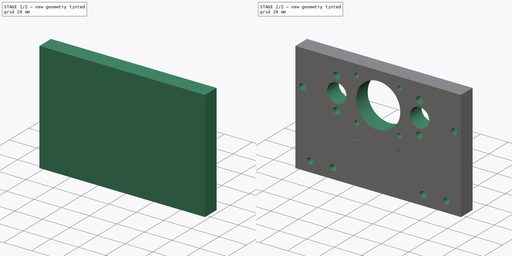
[diagram: build sequence overview — one tinted view per stage of 2, left to right]
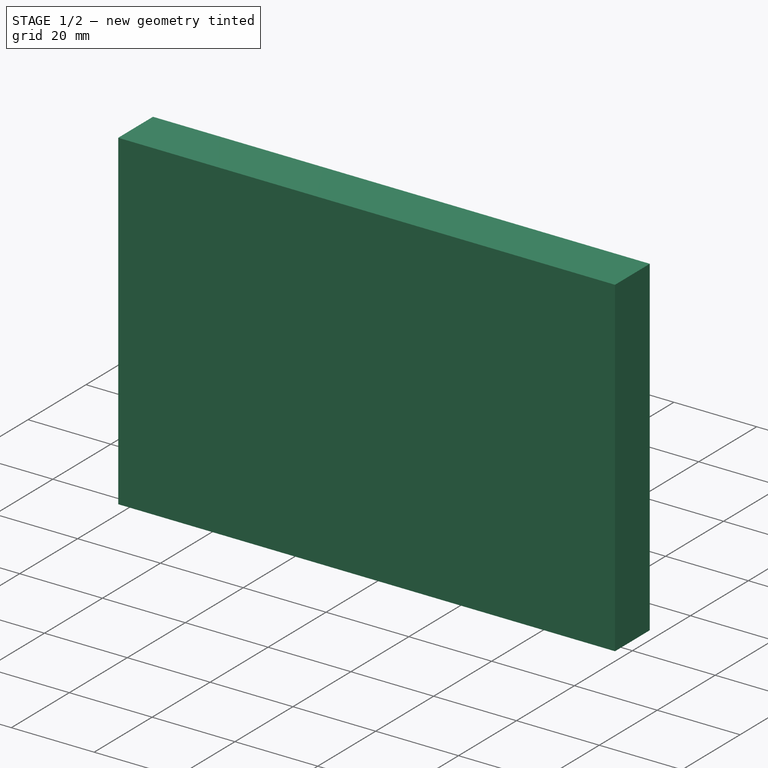
[diagram: stage 1 of 2 — iso view after this stage's code; geometry added in this stage tinted green]
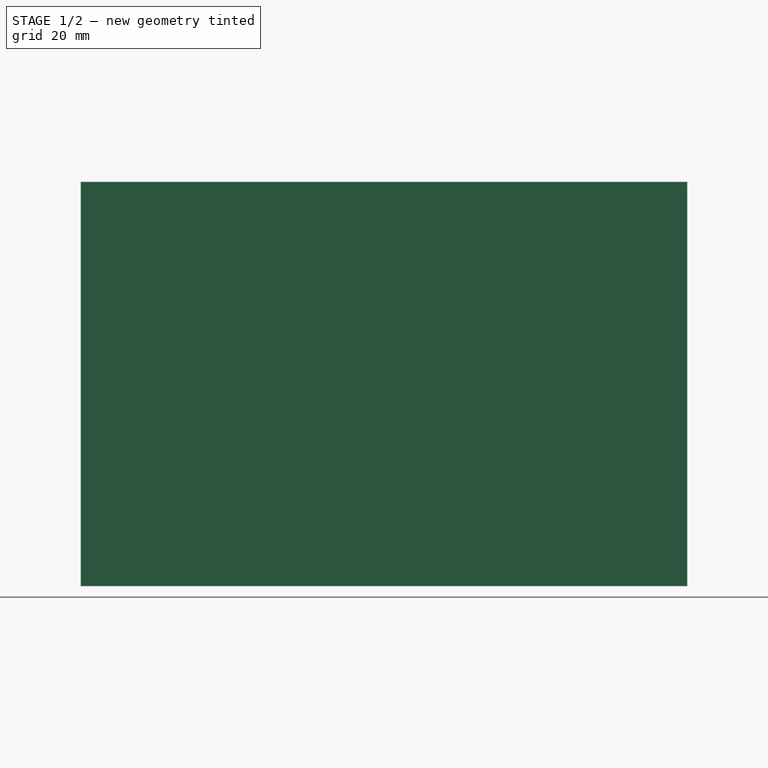
[diagram: stage 1 of 2 — front view after this stage's code; geometry added in this stage tinted green]
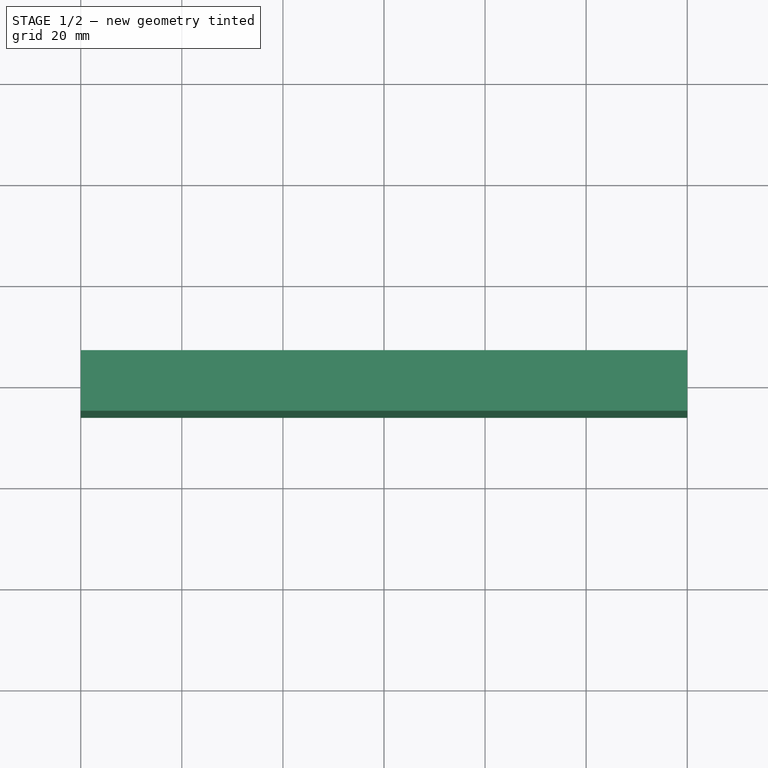
[diagram: stage 1 of 2 — top view after this stage's code; geometry added in this stage tinted green]
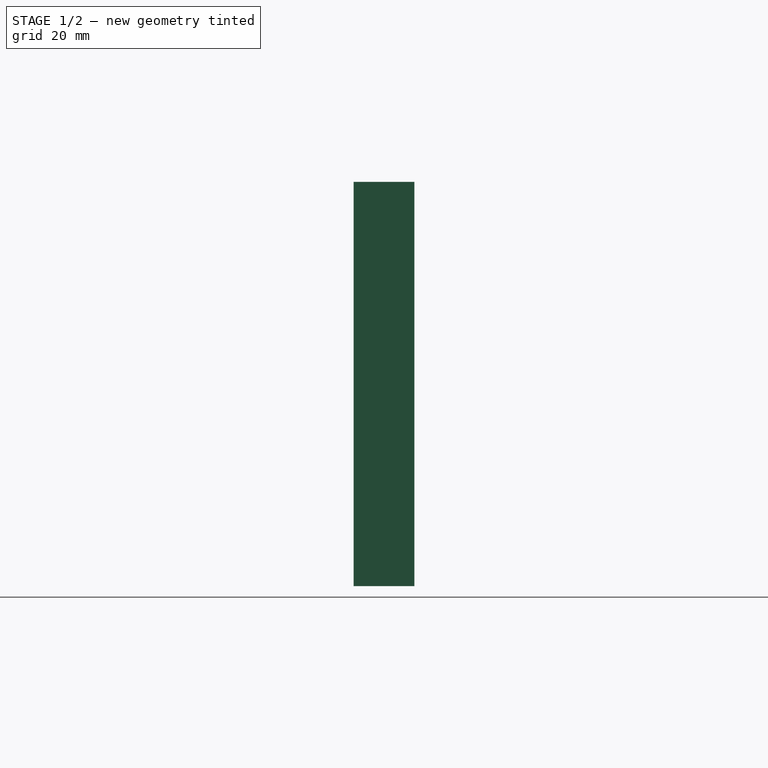
[diagram: stage 1 of 2 — right view after this stage's code; geometry added in this stage tinted green]
FCSTD DOCUMENT  (FreeCAD 0.15R4671 (Git))
Label: Tisch X-Achse - obere Wand
License: All rights reserved
LicenseURL: http://en.wikipedia.org/wiki/All_rights_reserved
objects: Drawing::FeatureView×29, Sketcher::SketchObject×2, PartDesign::Pad×1, PartDesign::Pocket×1, Drawing::FeatureViewPart×1, Drawing::FeaturePage×1
note: 6 computed .brp shape members not serialized (recipe doc carries the construction recipe); baked Part::Feature solids carry a one-line shape summary decoded from their .brp

FEATURE [Sketcher::SketchObject] Sketch
  sketch-geometry (4):
    g0: LineSegment StartX=-60 StartY=6 StartZ=0 EndX=60 EndY=6 EndZ=0
    g1: LineSegment StartX=60 StartY=6 StartZ=0 EndX=60 EndY=-6 EndZ=0
    g2: LineSegment StartX=60 StartY=-6 StartZ=0 EndX=-60 EndY=-6 EndZ=0
    g3: LineSegment StartX=-60 StartY=-6 StartZ=0 EndX=-60 EndY=6 EndZ=0
  constraints (12):
    c: Coincident(g0,g1)
    c: Coincident(g1,g2)
    c: Coincident(g2,g3)
    c: Coincident(g3,g0)
    c: Horizontal(g0)
    c: Horizontal(g2)
    c: Vertical(g1)
    c: Vertical(g3)
    c: Symmetric(g2,g1,g-2)
    c: Symmetric(g0,g1,g-1)
    c: DistanceY(g1) = -12
    c: DistanceX(g0) = 120
FEATURE [PartDesign::Pad] Pad
  Length = 80
  Length2 = 100
  Sketch = -> Sketch
  Type = 0
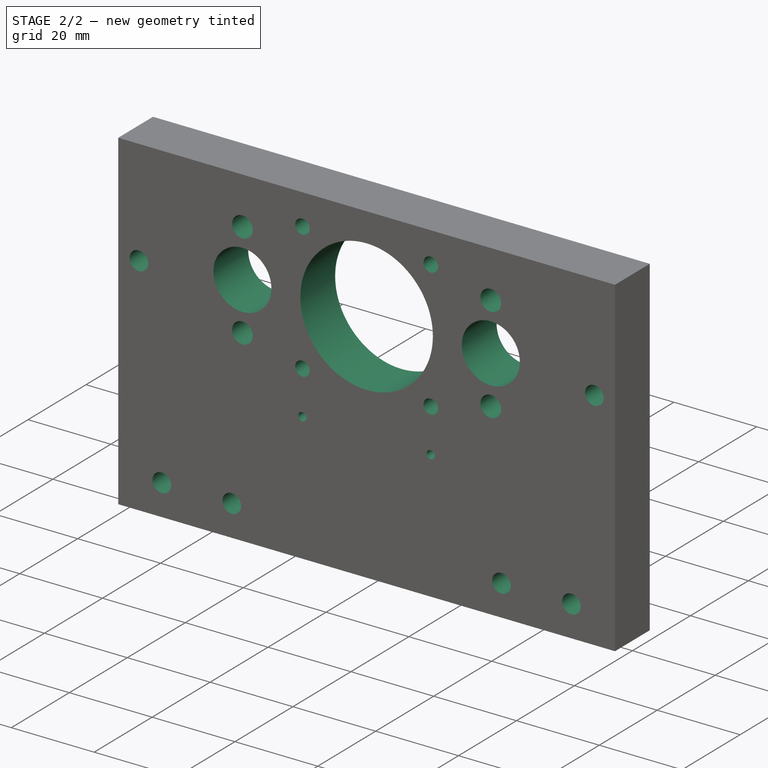
[diagram: stage 2 of 2 — iso view after this stage's code; geometry added in this stage tinted green]
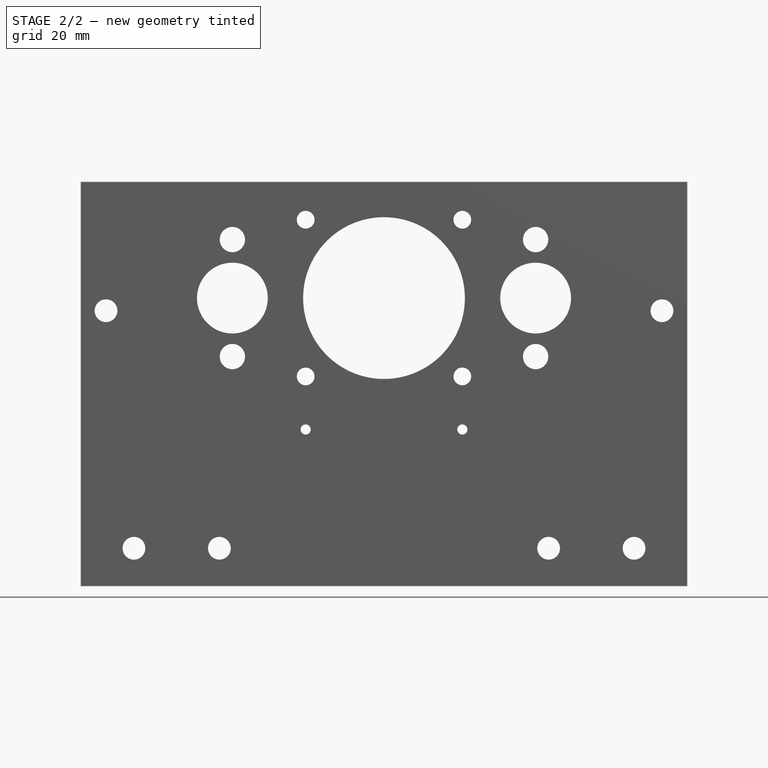
[diagram: stage 2 of 2 — front view after this stage's code; geometry added in this stage tinted green]
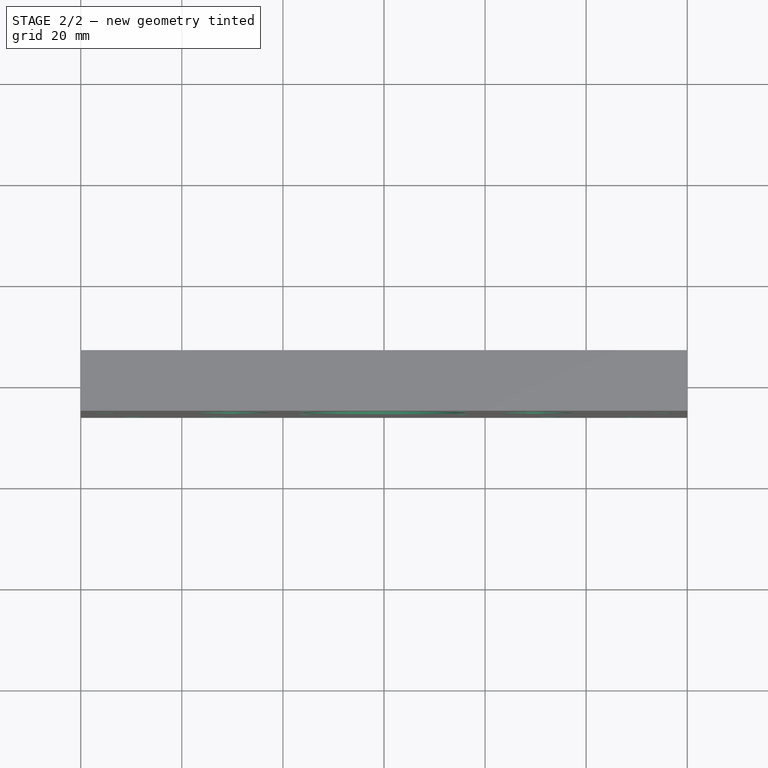
[diagram: stage 2 of 2 — top view after this stage's code; geometry added in this stage tinted green]
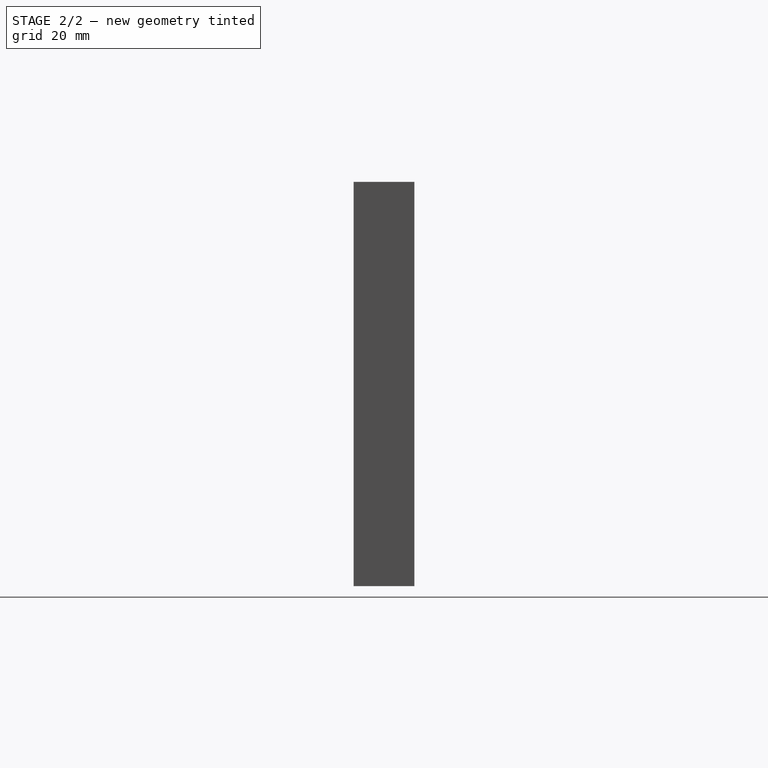
[diagram: stage 2 of 2 — right view after this stage's code; geometry added in this stage tinted green]
FEATURE [Sketcher::SketchObject] Sketch001
  ExternalGeometry = -> [Pad]
  Placement = pos=(0,-6,0) rot=(1,0,0;1.5708rad)
  Support = -> Pad [Face3]
  sketch-geometry (35):
    g0: LineSegment [constr] StartX=-60 StartY=7.5 StartZ=0 EndX=-49.475 EndY=7.5 EndZ=0
    g1: LineSegment [constr] StartX=-49.475 StartY=7.5 StartZ=0 EndX=-32.575 EndY=7.5 EndZ=0
    g2: LineSegment [constr] StartX=-32.575 StartY=7.5 StartZ=0 EndX=32.575 EndY=7.5 EndZ=0
    g3: LineSegment [constr] StartX=32.575 StartY=7.5 StartZ=0 EndX=49.475 EndY=7.5 EndZ=0
    g4: LineSegment [constr] StartX=49.475 StartY=7.5 StartZ=0 EndX=60 EndY=7.5 EndZ=0
    g5: Circle CenterX=-49.475 CenterY=7.5 CenterZ=0 NormalX=0 NormalY=0 NormalZ=1 Radius=2.25
    g6: Circle CenterX=-32.575 CenterY=7.5 CenterZ=0 NormalX=0 NormalY=0 NormalZ=1 Radius=2.25
    g7: Circle CenterX=32.575 CenterY=7.5 CenterZ=0 NormalX=0 NormalY=0 NormalZ=1 Radius=2.25
    g8: Circle CenterX=49.475 CenterY=7.5 CenterZ=0 NormalX=0 NormalY=0 NormalZ=1 Radius=2.25
    g9: Circle CenterX=-30 CenterY=57 CenterZ=0 NormalX=0 NormalY=0 NormalZ=1 Radius=7
    g10: Circle CenterX=30 CenterY=57 CenterZ=0 NormalX=0 NormalY=0 NormalZ=1 Radius=7
    g11: LineSegment [constr] StartX=-60 StartY=57 StartZ=0 EndX=-30 EndY=57 EndZ=0
    g12: LineSegment [constr] StartX=-30 StartY=57 StartZ=0 EndX=30 EndY=57 EndZ=0
    g13: LineSegment [constr] StartX=30 StartY=57 StartZ=0 EndX=60 EndY=57 EndZ=0
    g14: Circle CenterX=0 CenterY=57 CenterZ=0 NormalX=0 NormalY=0 NormalZ=1 Radius=16
    g15: LineSegment [constr] StartX=-15.5 StartY=72.5 StartZ=0 EndX=15.5 EndY=72.5 EndZ=0
    g16: LineSegment [constr] StartX=15.5 StartY=72.5 StartZ=0 EndX=15.5 EndY=41.5 EndZ=0
    g17: LineSegment [constr] StartX=15.5 StartY=41.5 StartZ=0 EndX=-15.5 EndY=41.5 EndZ=0
    g18: LineSegment [constr] StartX=-15.5 StartY=41.5 StartZ=0 EndX=-15.5 EndY=72.5 EndZ=0
    g19: Circle CenterX=-15.5 CenterY=72.5 CenterZ=0 NormalX=0 NormalY=0 NormalZ=1 Radius=1.75
    g20: Circle CenterX=-15.5 CenterY=41.5 CenterZ=0 NormalX=0 NormalY=0 NormalZ=1 Radius=1.75
    g21: Circle CenterX=15.5 CenterY=41.5 CenterZ=0 NormalX=0 NormalY=0 NormalZ=1 Radius=1.75
    g22: Circle CenterX=15.5 CenterY=72.5 CenterZ=0 NormalX=0 NormalY=0 NormalZ=1 Radius=1.75
    g23: Circle CenterX=-30 CenterY=68.575 CenterZ=0 NormalX=0 NormalY=0 NormalZ=1 Radius=2.5
    g24: Circle CenterX=-30 CenterY=45.425 CenterZ=0 NormalX=0 NormalY=0 NormalZ=1 Radius=2.5
    g25: Circle CenterX=30 CenterY=68.575 CenterZ=0 NormalX=0 NormalY=0 NormalZ=1 Radius=2.5
    g26: Circle CenterX=30 CenterY=45.425 CenterZ=0 NormalX=0 NormalY=0 NormalZ=1 Radius=2.5
    g27: LineSegment [constr] StartX=-30 StartY=45.425 StartZ=0 EndX=-30 EndY=68.575 EndZ=0
    g28: LineSegment [constr] StartX=30 StartY=68.575 StartZ=0 EndX=30 EndY=45.425 EndZ=0
    g29: Circle CenterX=-55 CenterY=54.5 CenterZ=0 NormalX=0 NormalY=0 NormalZ=1 Radius=2.25
    g30: Circle CenterX=55 CenterY=54.5 CenterZ=0 NormalX=0 NormalY=0 NormalZ=1 Radius=2.25
    g31: LineSegment [constr] StartX=-55 StartY=54.5 StartZ=0 EndX=55 EndY=54.5 EndZ=0
    g32: LineSegment [constr] StartX=-15.5 StartY=31 StartZ=0 EndX=15.5 EndY=31 EndZ=0
    g33: Circle CenterX=-15.5 CenterY=31 CenterZ=0 NormalX=0 NormalY=0 NormalZ=1 Radius=1
    g34: Circle CenterX=15.5 CenterY=31 CenterZ=0 NormalX=0 NormalY=0 NormalZ=1 Radius=1
  constraints (90):
    c: PointOnObject(g0,g-3)
    c: Horizontal(g0)
    c: Coincident(g0,g1)
    c: Horizontal(g1)
    c: Coincident(g1,g2)
    c: Horizontal(g2)
    c: Coincident(g2,g3)
    c: Horizontal(g3)
    c: Coincident(g3,g4)
    c: PointOnObject(g4,g-4)
    c: Horizontal(g4)
    c: Symmetric(g1,g2,g-2)
    c: Equal(g1,g3)
    c: Equal(g0,g4)
    c: DistanceX(g0) = 10.525
    c: DistanceX(g0,g1) = 27.425
    c: DistanceY(g-3,g0) = 7.5
    c: Coincident(g5,g0)
    c: Coincident(g6,g1)
    c: Coincident(g7,g2)
    c: Coincident(g8,g3)
    c: Radius(g5) = 2.25
    c: Equal(g5,g6)
    c: Equal(g5,g7)
    c: Equal(g5,g8)
    c: PointOnObject(g11,g-3)
    c: Horizontal(g11)
    c: Coincident(g11,g12)
    c: Horizontal(g12)
    c: Coincident(g12,g13)
    c: PointOnObject(g13,g-4)
    c: Horizontal(g13)
    c: Equal(g13,g11)
    c: Coincident(g9,g11)
    c: Coincident(g10,g12)
    c: Radius(g9) = 7
    c: Equal(g9,g10)
    c: DistanceX(g12) = 60
    c: DistanceY(g-3,g11) = 57
    c: PointOnObject(g14,g-2)
    c: Radius(g14) = 16
    c: Coincident(g15,g16)
    c: Coincident(g16,g17)
    c: Coincident(g17,g18)
    c: Coincident(g18,g15)
    c: Horizontal(g15)
    c: Horizontal(g17)
    c: Vertical(g16)
    c: Vertical(g18)
    c: Equal(g17,g16)
    c: Symmetric(g15,g15,g-2)
    c: Coincident(g19,g15)
    c: Coincident(g20,g17)
    c: Coincident(g21,g16)
    c: Coincident(g22,g15)
    c: Radius(g20) = 1.75
    c: Equal(g20,g19)
    c: Equal(g20,g22)
    c: Equal(g20,g21)
    c: DistanceX(g15) = 31
    c: PointOnObject(g14,g12)
    c: Symmetric(g17,g15,g12)
    c: Coincident(g27,g24)
    c: Coincident(g27,g23)
    c: Coincident(g28,g25)
    c: Coincident(g28,g26)
    c: Equal(g27,g28)
    c: Symmetric(g24,g23,g11)
    c: Symmetric(g25,g26,g13)
    c: PointOnObject(g9,g27)
    c: PointOnObject(g10,g28)
    c: DistanceY(g28) = -23.15
    c: Radius(g26) = 2.5
    c: Equal(g26,g24)
    c: Equal(g26,g23)
    c: Equal(g26,g25)
    c: Radius(g29) = 2.25
    c: Equal(g29,g30)
    c: Coincident(g31,g29)
    c: Coincident(g31,g30)
    c: Symmetric(g29,g30,g-2)
    c: DistanceX(g29,g-3) = -5
    c: DistanceY(g29,g-3) = 25.5
    c: Symmetric(g32,g32,g-2)
    c: PointOnObject(g32,g18)
    c: Coincident(g33,g32)
    c: Coincident(g34,g32)
    c: DistanceY(g16,g32) = -10.5
    c: Radius(g33) = 1
    c: Equal(g33,g34)
FEATURE [PartDesign::Pocket] Pocket
  Length = 5
  Sketch = -> Sketch001
  Type = 1
FEATURE [Drawing::FeatureViewPart] Ortho  label="Ortho_0_0"
  Direction = (0,1,0)
  HiddenWidth = 0.15
  LineWidth = 0.35
  Rotation = 90
  ShowHiddenLines = false
  ShowSmoothLines = false
  Source = -> Pocket
  Tolerance = 0.05
  ViewResult = <g id="Ortho_0_0"\n   transform="rotate(90,148.5,65) translate(148.5,65) scale(1,1)"\n  >\n<g   stroke="rgb(0, 0, 0)"\n   stroke-width="0.35"\n   stroke-linecap="butt"\n   stroke-linejoin="miter"\n   fill="none"\n   transform="scale(1,-1)"\n  >\n<path id= "1" d=" M 0 -60 L 80 -60 " />\n<path id= "2" d=" M 0 -60 L 0 60 " />\n<path id= "3" d=" M 80 -60 L 80 60 " />\n<path id= "4" d=" M 0 60 L 80 60 " />\n<circle cx ="57" cy ="30" r ="7" /><circle cx ="45.425" cy ="30" r ="2.5" /><circle cx ="7.5" cy ="32.575" r ="2.25" /><circle cx ="41.5" cy ="15.5" r ="1.75" /><circle cx ="31" cy ="15.5" r ="1" /><circle cx ="7.5" cy ="-32.575" r ="2.25" /><circle cx ="31" cy ="-15.5" r ="1" /><circle cx ="41.5" cy ="-15.5" r ="1.75" /><circle cx ="45.425" cy ="-30" r ="2.5" /><circle cx ="57" cy ="-30" r ="7" /><circle cx ="68.575" cy ="-30" r ="2.5" /><circle cx ="68.575" cy ="30" r ="2.5" /><circle cx ="57" cy ="0" r ="16" /><circle cx ="72.5" cy ="15.5" r ="1.75" /><circle cx ="72.5" cy ="-15.5" r ="1.75" /><circle cx ="7.5" cy ="49.475" r ="2.25" /><circle cx ="7.5" cy ="-49.475" r ="2.25" /><circle cx ="54.5" cy ="55" r ="2.25" /><circle cx ="54.5" cy ="-55" r ="2.25" /></g>\n</g>
  Visible = true
  X = 148.5
  Y = 65
FEATURE [Drawing::FeatureView] dim001
  Rotation = 0
  ViewResult = <g>  <circle cx ="99.025000" cy ="72.500000" r="0.250000" stroke="none" fill="rgb(0,0,255)" /> \n<line x1="88.647109" y1="55.640207" x2="100.204436" y2="74.416098" style="stroke:rgb(0,0,255);stroke-width:0.50" />\n<polygon points="97.845564,70.583902 97.124581,67.504912 95.748788,67.177507 95.421383,68.553300" style="fill:rgb(0,0,255);stroke:rgb(0,0,255);stroke-width:0" />\n<polygon points="100.204436,74.416098 100.925419,77.495088 102.301212,77.822493 102.628617,76.446700" style="fill:rgb(0,0,255);stroke:rgb(0,0,255);stroke-width:0" />\n<line x1="88.647109" y1="55.640207" x2="72.929536" y2="55.640207" style="stroke:rgb(0,0,255);stroke-width:0.50" />\n<text x="80.788323" y="53.640207" font-family="inherit" font-size="3.6" fill="rgb(0,0,255)" text-anchor="middle" transform="rotate(0.000000 80.788323,53.640207)" >Ø4.5</text> </g>
  Visible = true
  X = 0
  Y = 0
FEATURE [Drawing::FeatureView] dim007
  Rotation = 0
  ViewResult = <g>  <circle cx ="118.500000" cy ="122.000000" r="0.250000" stroke="none" fill="rgb(0,0,255)" /> \n<line x1="94.721908" y1="113.446006" x2="125.086752" y2="124.369536" style="stroke:rgb(0,0,255);stroke-width:0.50" />\n<polygon points="111.913248,119.630464 114.397637,121.586944 115.677106,120.984485 115.074647,119.705015" style="fill:rgb(0,0,255);stroke:rgb(0,0,255);stroke-width:0" />\n<polygon points="125.086752,124.369536 122.602363,122.413056 121.322894,123.015515 121.925353,124.294985" style="fill:rgb(0,0,255);stroke:rgb(0,0,255);stroke-width:0" />\n<line x1="94.721908" y1="113.446006" x2="70.490722" y2="113.446006" style="stroke:rgb(0,0,255);stroke-width:0.50" />\n<text x="82.606315" y="111.446006" font-family="inherit" font-size="3.6" fill="rgb(0,0,255)" text-anchor="middle" transform="rotate(0.000000 82.606315,111.446006)" >Ø14</text> </g>
  Visible = true
  X = 0
  Y = 0
FEATURE [Drawing::FeatureView] dim002
  Rotation = 0
  ViewResult = <g>  <circle cx ="148.500000" cy ="122.000000" r="0.250000" stroke="none" fill="rgb(0,0,255)" /> \n<line x1="174.684821" y1="135.694640" x2="134.321976" y2="114.584905" style="stroke:rgb(0,0,255);stroke-width:0.50" />\n<polygon points="162.678024,129.415095 160.483088,127.138638 159.133518,127.561321 159.556201,128.910891" style="fill:rgb(0,0,255);stroke:rgb(0,0,255);stroke-width:0" />\n<polygon points="134.321976,114.584905 136.516912,116.861362 137.866482,116.438679 137.443799,115.089109" style="fill:rgb(0,0,255);stroke:rgb(0,0,255);stroke-width:0" />\n<line x1="174.684821" y1="135.694640" x2="201.118842" y2="135.694640" style="stroke:rgb(0,0,255);stroke-width:0.50" />\n<text x="187.901831" y="133.694640" font-family="inherit" font-size="3.6" fill="rgb(0,0,255)" text-anchor="middle" transform="rotate(0.000000 187.901831,133.694640)" >Ø32</text> </g>
  Visible = true
  X = 0
  Y = 0
FEATURE [Drawing::FeatureView] centerLines001
  Rotation = 0
  ViewResult = <g transform="scale(1.000000,1.000000)" stroke="rgb(0,0,255)"  stroke-width="0.320000" > <path d="M 99.025000,72.500000 L 99.025000,69.500000 M 99.025000,67.500000 L 99.025000,64.543067 "/>\n<path d="M 99.025000,72.500000 L 102.025000,72.500000 M 104.025000,72.500000 L 104.194099,72.500000 "/>\n<path d="M 99.025000,72.500000 L 99.025000,75.500000 M 99.025000,77.500000 L 99.025000,78.420928 "/>\n<path d="M 99.025000,72.500000 L 96.025000,72.500000 M 94.025000,72.500000 L 90.536521,72.500000 "/> </g> 
  Visible = true
  X = 0
  Y = 0
FEATURE [Drawing::FeatureView] centerLines002
  Rotation = 0
  ViewResult = <g transform="scale(1.000000,1.000000)" stroke="rgb(0,0,255)"  stroke-width="0.320000" > <path d="M 115.925000,72.500000 L 115.925000,69.500000 M 115.925000,67.500000 L 115.925000,67.186470 "/>\n<path d="M 115.925000,72.500000 L 118.925000,72.500000 M 120.925000,72.500000 L 123.138480,72.500000 "/>\n<path d="M 115.925000,72.500000 L 115.925000,75.500000 M 115.925000,77.500000 L 115.925000,78.861495 "/>\n<path d="M 115.925000,72.500000 L 112.925000,72.500000 "/> </g> 
  Visible = true
  X = 0
  Y = 0
FEATURE [Drawing::FeatureView] centerLines003
  Rotation = 0
  ViewResult = <g transform="scale(1.000000,1.000000)" stroke="rgb(0,0,255)"  stroke-width="0.320000" > <path d="M 181.075000,72.500000 L 181.075000,69.500000 M 181.075000,67.500000 L 181.075000,66.745903 "/>\n<path d="M 181.075000,72.500000 L 184.075000,72.500000 M 186.075000,72.500000 L 186.800414,72.500000 "/>\n<path d="M 181.075000,72.500000 L 181.075000,75.500000 M 181.075000,77.500000 L 181.075000,81.064330 "/>\n<path d="M 181.075000,72.500000 L 178.075000,72.500000 M 176.075000,72.500000 L 173.363120,72.500000 "/> </g> 
  Visible = true
  X = 0
  Y = 0
FEATURE [Drawing::FeatureView] centerLines004
  Rotation = 0
  ViewResult = <g transform="scale(1.000000,1.000000)" stroke="rgb(0,0,255)"  stroke-width="0.320000" > <path d="M 197.975000,72.500000 L 197.975000,69.500000 M 197.975000,67.500000 L 197.975000,66.305336 "/>\n<path d="M 197.975000,72.500000 L 200.975000,72.500000 M 202.975000,72.500000 L 205.744795,72.500000 "/>\n<path d="M 197.975000,72.500000 L 197.975000,75.500000 M 197.975000,77.500000 L 197.975000,82.165748 "/>\n<path d="M 197.975000,72.500000 L 194.975000,72.500000 M 192.975000,72.500000 L 191.646651,72.500000 "/> </g> 
  Visible = true
  X = 0
  Y = 0
FEATURE [Drawing::FeatureView] centerLines005
  Rotation = 0
  ViewResult = <g transform="scale(1.000000,1.000000)" stroke="rgb(0,0,255)"  stroke-width="0.320000" > <path d="M 164.000000,106.500000 L 164.000000,103.500000 M 164.000000,101.500000 L 164.000000,99.127578 "/>\n<path d="M 164.000000,106.500000 L 167.000000,106.500000 M 169.000000,106.500000 L 175.000000,106.500000 "/>\n<path d="M 164.000000,106.500000 L 164.000000,109.500000 "/>\n<path d="M 164.000000,106.500000 L 161.000000,106.500000 M 159.000000,106.500000 L 156.181006,106.500000 "/> </g> 
  Visible = true
  X = 0
  Y = 0
FEATURE [Drawing::FeatureView] centerLines006
  Rotation = 0
  ViewResult = <g transform="scale(1.000000,1.000000)" stroke="rgb(0,0,255)"  stroke-width="0.320000" > <path d="M 133.000000,106.500000 L 133.000000,103.500000 M 133.000000,101.500000 L 133.000000,98.687011 "/>\n<path d="M 133.000000,106.500000 L 136.000000,106.500000 M 138.000000,106.500000 L 140.100310,106.500000 "/>\n<path d="M 133.000000,106.500000 L 133.000000,109.500000 "/>\n<path d="M 133.000000,106.500000 L 130.000000,106.500000 M 128.000000,106.500000 L 123.799331,106.500000 "/> </g> 
  Visible = true
  X = 0
  Y = 0
FEATURE [Drawing::FeatureView] centerLines007
  Rotation = 0
  ViewResult = <g transform="scale(1.000000,1.000000)" stroke="rgb(0,0,255)"  stroke-width="0.320000" > <path d="M 118.500000,122.000000 L 118.500000,119.000000 M 118.500000,117.000000 L 118.500000,111.000000 "/>\n<path d="M 118.500000,122.000000 L 121.500000,122.000000 M 123.500000,122.000000 L 129.086135,122.000000 "/>\n<path d="M 118.500000,122.000000 L 118.500000,125.000000 M 118.500000,127.000000 L 118.500000,133.000000 "/>\n<path d="M 118.500000,122.000000 L 115.500000,122.000000 M 113.500000,122.000000 L 107.500000,122.000000 "/> </g> 
  Visible = true
  X = 0
  Y = 0
FEATURE [Drawing::FeatureView] centerLines008
  Rotation = 0
  ViewResult = <g transform="scale(1.000000,1.000000)" stroke="rgb(0,0,255)"  stroke-width="0.320000" > <path d="M 148.500000,122.000000 L 148.500000,119.000000 M 148.500000,117.000000 L 148.500000,111.000000 M 148.500000,109.000000 L 148.500000,106.000000 M 148.500000,104.000000 L 148.500000,102.211547 "/>\n<path d="M 148.500000,122.000000 L 151.500000,122.000000 M 153.500000,122.000000 L 159.500000,122.000000 M 161.500000,122.000000 L 164.500000,122.000000 M 166.500000,122.000000 L 168.737166,122.000000 "/>\n<path d="M 148.500000,122.000000 L 148.500000,125.000000 M 148.500000,127.000000 L 148.500000,133.000000 M 148.500000,135.000000 L 148.500000,138.000000 "/>\n<path d="M 148.500000,122.000000 L 145.500000,122.000000 M 143.500000,122.000000 L 137.500000,122.000000 M 135.500000,122.000000 L 132.500000,122.000000 "/> </g> 
  Visible = true
  X = 0
  Y = 0
FEATURE [Drawing::FeatureView] centerLines009
  Rotation = 0
  ViewResult = <g transform="scale(1.000000,1.000000)" stroke="rgb(0,0,255)"  stroke-width="0.320000" > <path d="M 178.500000,122.000000 L 178.500000,119.000000 M 178.500000,117.000000 L 178.500000,111.000000 M 178.500000,109.000000 L 178.500000,108.820052 "/>\n<path d="M 178.500000,122.000000 L 181.500000,122.000000 M 183.500000,122.000000 L 189.500000,122.000000 M 191.500000,122.000000 L 192.087218,122.000000 "/>\n<path d="M 178.500000,122.000000 L 178.500000,125.000000 M 178.500000,127.000000 L 178.500000,133.000000 "/>\n<path d="M 178.500000,122.000000 L 175.500000,122.000000 M 173.500000,122.000000 L 167.500000,122.000000 "/> </g> 
  Visible = true
  X = 0
  Y = 0
FEATURE [Drawing::FeatureView] centerLines010
  Rotation = 0
  ViewResult = <g transform="scale(1.000000,1.000000)" stroke="rgb(0,0,255)"  stroke-width="0.320000" > <path d="M 164.000000,137.500000 L 164.000000,134.500000 "/>\n<path d="M 164.000000,137.500000 L 167.000000,137.500000 "/>\n<path d="M 164.000000,137.500000 L 164.000000,140.500000 "/>\n<path d="M 164.000000,137.500000 L 161.000000,137.500000 "/> </g> 
  Visible = true
  X = 0
  Y = 0
FEATURE [Drawing::FeatureView] centerLines011
  Rotation = 0
  ViewResult = <g transform="scale(1.000000,1.000000)" stroke="rgb(0,0,255)"  stroke-width="0.320000" > <path d="M 133.000000,137.500000 L 133.000000,134.500000 "/>\n<path d="M 133.000000,137.500000 L 136.000000,137.500000 "/>\n<path d="M 133.000000,137.500000 L 133.000000,140.500000 M 133.000000,142.500000 L 133.000000,143.184279 "/>\n<path d="M 133.000000,137.500000 L 130.000000,137.500000 M 128.000000,137.500000 L 127.544150,137.500000 "/> </g> 
  Visible = true
  X = 0
  Y = 0
FEATURE [Drawing::FeatureView] centerLines012
  Rotation = 0
  ViewResult = <g transform="scale(1.000000,1.000000)" stroke="rgb(0,0,255)"  stroke-width="0.320000" > <path d="M 118.500000,110.425000 L 118.500000,107.425000 M 118.500000,105.425000 L 118.500000,104.511199 "/>\n<path d="M 118.500000,110.425000 L 121.500000,110.425000 M 123.500000,110.425000 L 125.062140,110.425000 "/>\n<path d="M 118.500000,110.425000 L 118.500000,113.425000 "/>\n<path d="M 118.500000,110.425000 L 115.500000,110.425000 M 113.500000,110.425000 L 112.942354,110.425000 "/> </g> 
  Visible = true
  X = 0
  Y = 0
FEATURE [Drawing::FeatureView] centerLines013
  Rotation = 0
  ViewResult = <g transform="scale(1.000000,1.000000)" stroke="rgb(0,0,255)"  stroke-width="0.320000" > <path d="M 118.500000,133.575000 L 118.500000,130.575000 "/>\n<path d="M 118.500000,133.575000 L 121.500000,133.575000 M 123.500000,133.575000 L 125.237790,133.575000 "/>\n<path d="M 118.500000,133.575000 L 118.500000,136.575000 M 118.500000,138.575000 L 118.500000,139.289715 "/>\n<path d="M 118.500000,133.575000 L 115.500000,133.575000 M 113.500000,133.575000 L 113.118003,133.575000 "/> </g> 
  Visible = true
  X = 0
  Y = 0
FEATURE [Drawing::FeatureView] centerLines014
  Rotation = 0
  ViewResult = <g transform="scale(1.000000,1.000000)" stroke="rgb(0,0,255)"  stroke-width="0.320000" > <path d="M 178.500000,110.425000 L 178.500000,107.425000 M 178.500000,105.425000 L 178.500000,103.984252 "/>\n<path d="M 178.500000,110.425000 L 181.500000,110.425000 M 183.500000,110.425000 L 185.309773,110.425000 "/>\n<path d="M 178.500000,110.425000 L 178.500000,113.425000 M 178.500000,115.425000 L 178.500000,117.333581 "/>\n<path d="M 178.500000,110.425000 L 175.500000,110.425000 M 173.500000,110.425000 L 173.014338,110.425000 "/> </g> 
  Visible = true
  X = 0
  Y = 0
FEATURE [Drawing::FeatureView] centerLines015
  Rotation = 0
  ViewResult = <g transform="scale(1.000000,1.000000)" stroke="rgb(0,0,255)"  stroke-width="0.320000" > <path d="M 178.500000,133.575000 L 178.500000,130.575000 M 178.500000,128.575000 L 178.500000,125.764737 "/>\n<path d="M 178.500000,133.575000 L 181.500000,133.575000 M 183.500000,133.575000 L 184.782826,133.575000 "/>\n<path d="M 178.500000,133.575000 L 178.500000,136.575000 M 178.500000,138.575000 L 178.500000,141.573153 "/>\n<path d="M 178.500000,133.575000 L 175.500000,133.575000 M 173.500000,133.575000 L 172.487390,133.575000 "/> </g> 
  Visible = true
  X = 0
  Y = 0
FEATURE [Drawing::FeatureView] dim003
  Rotation = 0
  ViewResult = <g>  <circle cx ="118.500000" cy ="110.425000" r="0.250000" stroke="none" fill="rgb(0,0,255)" /> \n<line x1="109.429373" y1="110.307618" x2="120.999791" y2="110.457349" style="stroke:rgb(0,0,255);stroke-width:0.50" />\n<polygon points="116.000209,110.392651 113.013400,109.353915 112.000544,110.340891 112.987521,111.353748" style="fill:rgb(0,0,255);stroke:rgb(0,0,255);stroke-width:0" />\n<polygon points="120.999791,110.457349 123.986600,111.496085 124.999456,110.509109 124.012479,109.496252" style="fill:rgb(0,0,255);stroke:rgb(0,0,255);stroke-width:0" />\n<line x1="109.429373" y1="110.307618" x2="95.728745" y2="110.307618" style="stroke:rgb(0,0,255);stroke-width:0.50" />\n<text x="102.579059" y="108.307618" font-family="inherit" font-size="3.6" fill="rgb(0,0,255)" text-anchor="middle" transform="rotate(0.000000 102.579059,108.307618)" >Ø5</text> </g>
  Visible = true
  X = 0
  Y = 0
FEATURE [Drawing::FeatureView] centerLines016
  Rotation = 0
  ViewResult = <g transform="scale(1.000000,1.000000)" stroke="rgb(0,0,255)"  stroke-width="0.320000" > <path d="M 88.500000,65.000000 L 85.500000,65.000000 M 83.500000,65.000000 L 77.500000,65.000000 M 75.500000,65.000000 L 72.500000,65.000000 M 70.500000,65.000000 L 64.500000,65.000000 M 62.500000,65.000000 L 59.500000,65.000000 M 57.500000,65.000000 L 51.500000,65.000000 "/>\n<path d="M 88.500000,65.000000 L 91.500000,65.000000 M 93.500000,65.000000 L 99.500000,65.000000 M 101.500000,65.000000 L 104.500000,65.000000 M 106.500000,65.000000 L 112.500000,65.000000 M 114.500000,65.000000 L 117.500000,65.000000 M 119.500000,65.000000 L 125.500000,65.000000 M 127.500000,65.000000 L 130.500000,65.000000 M 132.500000,65.000000 L 138.500000,65.000000 M 140.500000,65.000000 L 143.500000,65.000000 M 145.500000,65.000000 L 151.500000,65.000000 M 153.500000,65.000000 L 156.500000,65.000000 M 158.500000,65.000000 L 164.500000,65.000000 M 166.500000,65.000000 L 169.500000,65.000000 M 171.500000,65.000000 L 177.500000,65.000000 M 179.500000,65.000000 L 182.500000,65.000000 M 184.500000,65.000000 L 190.500000,65.000000 M 192.500000,65.000000 L 195.500000,65.000000 M 197.500000,65.000000 L 203.500000,65.000000 M 205.500000,65.000000 L 208.500000,65.000000 M 210.500000,65.000000 L 216.500000,65.000000 M 218.500000,65.000000 L 221.500000,65.000000 M 223.500000,65.000000 L 229.500000,65.000000 M 231.500000,65.000000 L 234.500000,65.000000 M 236.500000,65.000000 L 242.500000,65.000000 M 244.500000,65.000000 L 247.500000,65.000000 "/> </g> 
  Visible = true
  X = 0
  Y = 0
FEATURE [Drawing::FeatureView] centerLines017
  Rotation = 0
  ViewResult = <g transform="scale(1.000000,1.000000)" stroke="rgb(0,0,255)"  stroke-width="0.320000" > <path d="M 88.500000,145.000000 L 91.500000,145.000000 M 93.500000,145.000000 L 99.500000,145.000000 M 101.500000,145.000000 L 104.500000,145.000000 M 106.500000,145.000000 L 112.500000,145.000000 M 114.500000,145.000000 L 117.500000,145.000000 M 119.500000,145.000000 L 125.500000,145.000000 M 127.500000,145.000000 L 130.500000,145.000000 M 132.500000,145.000000 L 138.500000,145.000000 M 140.500000,145.000000 L 143.500000,145.000000 M 145.500000,145.000000 L 151.500000,145.000000 M 153.500000,145.000000 L 156.500000,145.000000 M 158.500000,145.000000 L 164.500000,145.000000 M 166.500000,145.000000 L 169.500000,145.000000 M 171.500000,145.000000 L 177.500000,145.000000 M 179.500000,145.000000 L 182.500000,145.000000 M 184.500000,145.000000 L 190.500000,145.000000 M 192.500000,145.000000 L 195.500000,145.000000 M 197.500000,145.000000 L 203.500000,145.000000 M 205.500000,145.000000 L 208.500000,145.000000 M 210.500000,145.000000 L 216.500000,145.000000 M 218.500000,145.000000 L 221.500000,145.000000 M 223.500000,145.000000 L 229.500000,145.000000 M 231.500000,145.000000 L 234.500000,145.000000 M 236.500000,145.000000 L 242.500000,145.000000 M 244.500000,145.000000 L 247.500000,145.000000 M 249.500000,145.000000 L 250.651228,145.000000 "/>\n<path d="M 88.500000,145.000000 L 85.500000,145.000000 M 83.500000,145.000000 L 77.500000,145.000000 M 75.500000,145.000000 L 72.500000,145.000000 M 70.500000,145.000000 L 64.500000,145.000000 M 62.500000,145.000000 L 59.500000,145.000000 M 57.500000,145.000000 L 52.519073,145.000000 "/> </g> 
  Visible = true
  X = 0
  Y = 0
FEATURE [Drawing::FeatureView] centerLines018
  Rotation = 0
  ViewResult = <g transform="scale(1.000000,1.000000)" stroke="rgb(0,0,255)"  stroke-width="0.320000" > <path d="M 88.500000,65.000000 L 88.500000,62.000000 M 88.500000,60.000000 L 88.500000,54.000000 M 88.500000,52.000000 L 88.500000,49.000000 "/>\n<path d="M 88.500000,65.000000 L 88.500000,68.000000 M 88.500000,70.000000 L 88.500000,76.000000 M 88.500000,78.000000 L 88.500000,81.000000 M 88.500000,83.000000 L 88.500000,89.000000 M 88.500000,91.000000 L 88.500000,94.000000 M 88.500000,96.000000 L 88.500000,102.000000 M 88.500000,104.000000 L 88.500000,107.000000 M 88.500000,109.000000 L 88.500000,115.000000 M 88.500000,117.000000 L 88.500000,120.000000 M 88.500000,122.000000 L 88.500000,128.000000 M 88.500000,130.000000 L 88.500000,133.000000 M 88.500000,135.000000 L 88.500000,141.000000 M 88.500000,143.000000 L 88.500000,146.000000 M 88.500000,148.000000 L 88.500000,154.000000 M 88.500000,156.000000 L 88.500000,158.259815 "/> </g> 
  Visible = true
  X = 0
  Y = 0
FEATURE [Drawing::FeatureView] centerLines019
  Rotation = 0
  ViewResult = <g transform="scale(1.000000,1.000000)" stroke="rgb(0,0,255)"  stroke-width="0.320000" > <path d="M 208.500000,65.000000 L 208.500000,62.000000 M 208.500000,60.000000 L 208.500000,54.000000 M 208.500000,52.000000 L 208.500000,49.000000 M 208.500000,47.000000 L 208.500000,41.000000 M 208.500000,39.000000 L 208.500000,36.000000 M 208.500000,34.000000 L 208.500000,30.605095 "/>\n<path d="M 208.500000,65.000000 L 208.500000,68.000000 M 208.500000,70.000000 L 208.500000,76.000000 M 208.500000,78.000000 L 208.500000,81.000000 M 208.500000,83.000000 L 208.500000,89.000000 M 208.500000,91.000000 L 208.500000,94.000000 M 208.500000,96.000000 L 208.500000,102.000000 M 208.500000,104.000000 L 208.500000,107.000000 M 208.500000,109.000000 L 208.500000,115.000000 M 208.500000,117.000000 L 208.500000,120.000000 M 208.500000,122.000000 L 208.500000,128.000000 M 208.500000,130.000000 L 208.500000,133.000000 M 208.500000,135.000000 L 208.500000,141.000000 M 208.500000,143.000000 L 208.500000,146.000000 M 208.500000,148.000000 L 208.500000,154.000000 M 208.500000,156.000000 L 208.500000,159.000000 M 208.500000,161.000000 L 208.500000,167.000000 M 208.500000,169.000000 L 208.500000,172.000000 M 208.500000,174.000000 L 208.500000,180.000000 "/> </g> 
  Visible = true
  X = 0
  Y = 0
FEATURE [Drawing::FeatureView] dim004
  Rotation = 0
  ViewResult = <g>  <circle cx ="93.500000" cy ="119.500000" r="0.250000" stroke="none" fill="rgb(0,0,255)" /> \n<line x1="96.745719" y1="125.607807" x2="92.444161" y2="117.513117" style="stroke:rgb(0,0,255);stroke-width:0.50" />\n<polygon points="94.555839,121.486883 95.080566,124.605322 96.432887,125.019119 96.846684,123.666798" style="fill:rgb(0,0,255);stroke:rgb(0,0,255);stroke-width:0" />\n<polygon points="92.444161,117.513117 91.919434,114.394678 90.567113,113.980881 90.153316,115.333202" style="fill:rgb(0,0,255);stroke:rgb(0,0,255);stroke-width:0" />\n<line x1="96.745719" y1="125.607807" x2="105.519794" y2="125.607807" style="stroke:rgb(0,0,255);stroke-width:0.50" />\n<text x="101.132756" y="123.607807" font-family="inherit" font-size="3.6" fill="rgb(0,0,255)" text-anchor="middle" transform="rotate(0.000000 101.132756,123.607807)" >Ø4.5</text> </g>
  Visible = true
  X = 0
  Y = 0
FEATURE [Drawing::FeatureView] centerLines020
  Rotation = 0
  ViewResult = <g transform="scale(1.000000,1.000000)" stroke="rgb(0,0,255)"  stroke-width="0.320000" > <path d="M 93.500000,119.500000 L 93.500000,122.500000 M 93.500000,124.500000 L 93.500000,127.916774 "/>\n<path d="M 93.500000,119.500000 L 90.500000,119.500000 M 88.500000,119.500000 L 82.500000,119.500000 M 80.500000,119.500000 L 78.966673,119.500000 "/>\n<path d="M 93.500000,119.500000 L 93.500000,116.500000 M 93.500000,114.500000 L 93.500000,108.500000 "/>\n<path d="M 93.500000,119.500000 L 96.500000,119.500000 M 98.500000,119.500000 L 103.441723,119.500000 "/> </g> 
  Visible = true
  X = 0
  Y = 0
FEATURE [Drawing::FeatureView] centerLines021
  Rotation = 0
  ViewResult = <g transform="scale(1.000000,1.000000)" stroke="rgb(0,0,255)"  stroke-width="0.320000" > <path d="M 203.500000,119.500000 L 203.500000,116.500000 M 203.500000,114.500000 L 203.500000,110.368624 "/>\n<path d="M 203.500000,119.500000 L 206.500000,119.500000 M 208.500000,119.500000 L 212.424967,119.500000 "/>\n<path d="M 203.500000,119.500000 L 203.500000,122.500000 M 203.500000,124.500000 L 203.500000,128.609464 "/>\n<path d="M 203.500000,119.500000 L 200.500000,119.500000 M 198.500000,119.500000 L 197.185785,119.500000 "/> </g> 
  Visible = true
  X = 0
  Y = 0
FEATURE [Drawing::FeatureView] centerLines022
  Rotation = 0
  ViewResult = <g transform="scale(1.000000,1.000000)" stroke="rgb(0,0,255)"  stroke-width="0.320000" > <path d="M 133.000000,96.000000 L 133.000000,93.000000 M 133.000000,91.000000 L 133.000000,90.831843 "/>\n<path d="M 133.000000,96.000000 L 136.000000,96.000000 M 138.000000,96.000000 L 138.205892,96.000000 "/>\n<path d="M 133.000000,96.000000 L 133.000000,98.159030 "/>\n<path d="M 133.000000,96.000000 L 130.000000,96.000000 "/> </g> 
  Visible = true
  X = 0
  Y = 0
FEATURE [Drawing::FeatureView] centerLines023
  Rotation = 0
  ViewResult = <g transform="scale(1.000000,1.000000)" stroke="rgb(0,0,255)"  stroke-width="0.320000" > <path d="M 164.000000,96.000000 L 164.000000,93.000000 "/>\n<path d="M 164.000000,96.000000 L 167.000000,96.000000 "/>\n<path d="M 164.000000,96.000000 L 164.000000,97.780037 "/>\n<path d="M 164.000000,96.000000 L 161.000000,96.000000 "/> </g> 
  Visible = true
  X = 0
  Y = 0
FEATURE [Drawing::FeatureView] dim005
  Rotation = 0
  ViewResult = <g>  <circle cx ="164.000000" cy ="96.000000" r="0.250000" stroke="none" fill="rgb(0,0,255)" /> \n<line x1="160.566444" y1="92.221482" x2="164.672516" y2="96.740082" style="stroke:rgb(0,0,255);stroke-width:0.50" />\n<polygon points="163.327484,95.259918 162.050017,92.367154 160.637419,92.299588 160.569853,93.712187" style="fill:rgb(0,0,255);stroke:rgb(0,0,255);stroke-width:0" />\n<polygon points="164.672516,96.740082 165.949983,99.632846 167.362581,99.700412 167.430147,98.287813" style="fill:rgb(0,0,255);stroke:rgb(0,0,255);stroke-width:0" />\n<line x1="160.566444" y1="92.221482" x2="152.228611" y2="92.221482" style="stroke:rgb(0,0,255);stroke-width:0.50" />\n<text x="156.397527" y="90.221482" font-family="inherit" font-size="3.6" fill="rgb(0,0,255)" text-anchor="middle" transform="rotate(0.000000 156.397527,90.221482)" >Ø2</text> </g>
  Visible = true
  X = 0
  Y = 0
FEATURE [Drawing::FeaturePage] Page
  Group = -> [Ortho,dim001,dim007,dim002,centerLines001,centerLines002,centerLines003,centerLines004,centerLines005,centerLines006,centerLines007,centerLines008,centerLines009,centerLines010,centerLines011,centerLines012,centerLines013,centerLines014,centerLines015,dim003,centerLines016,centerLines017,centerLines018,centerLines019,dim004,centerLines020,centerLines021,centerLines022,centerLines023,dim005]
  Template = C:/Program Files/FreeCAD 0.15/data/Mod/Drawing/Templates/A4_Landscape_plain.svg
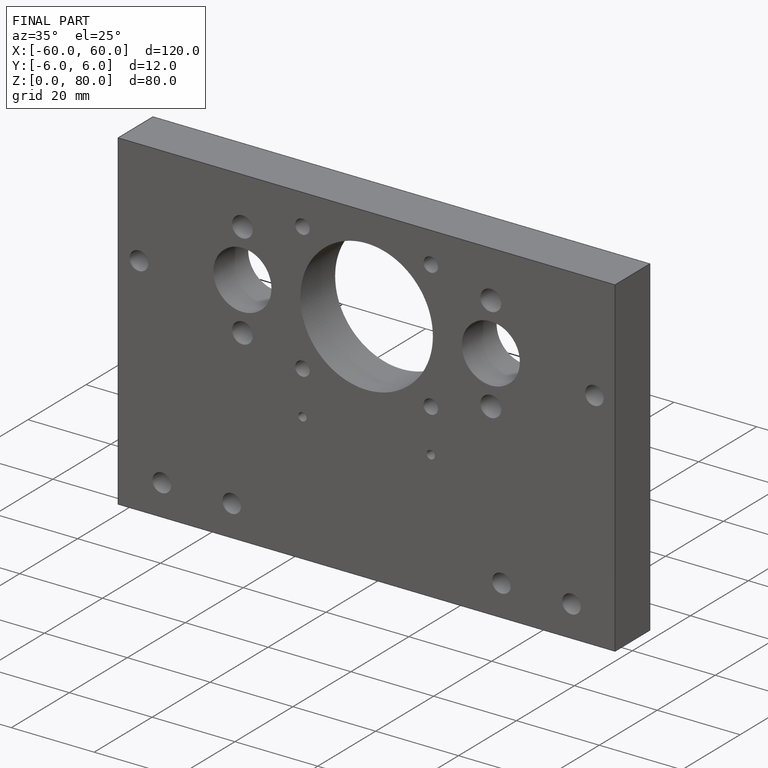
[diagram: finished part — iso view with bounding-box wireframe]
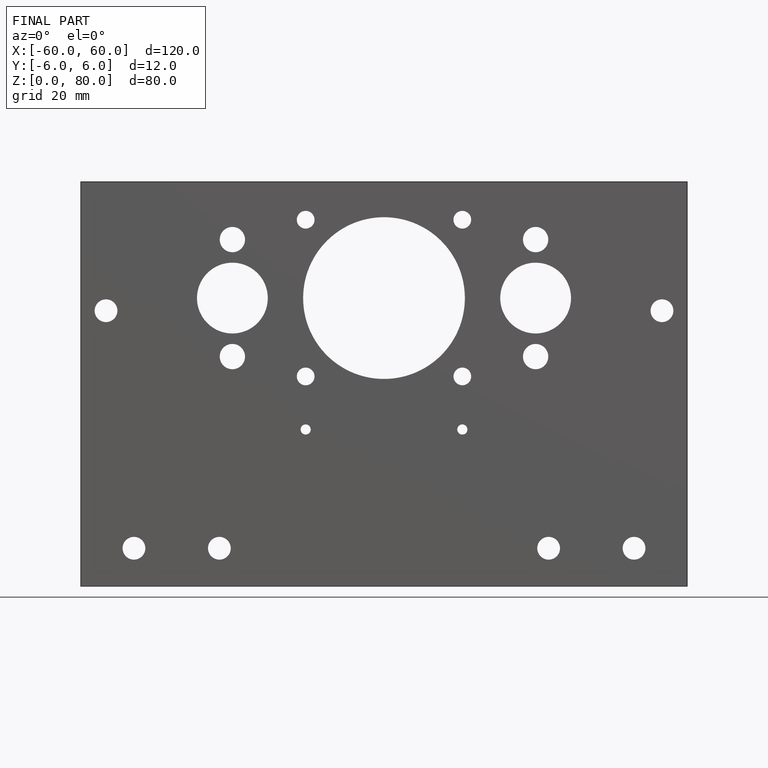
[diagram: finished part — front view with bounding-box wireframe]
